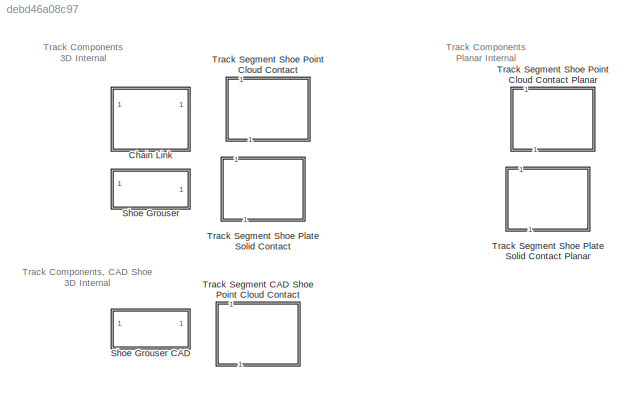
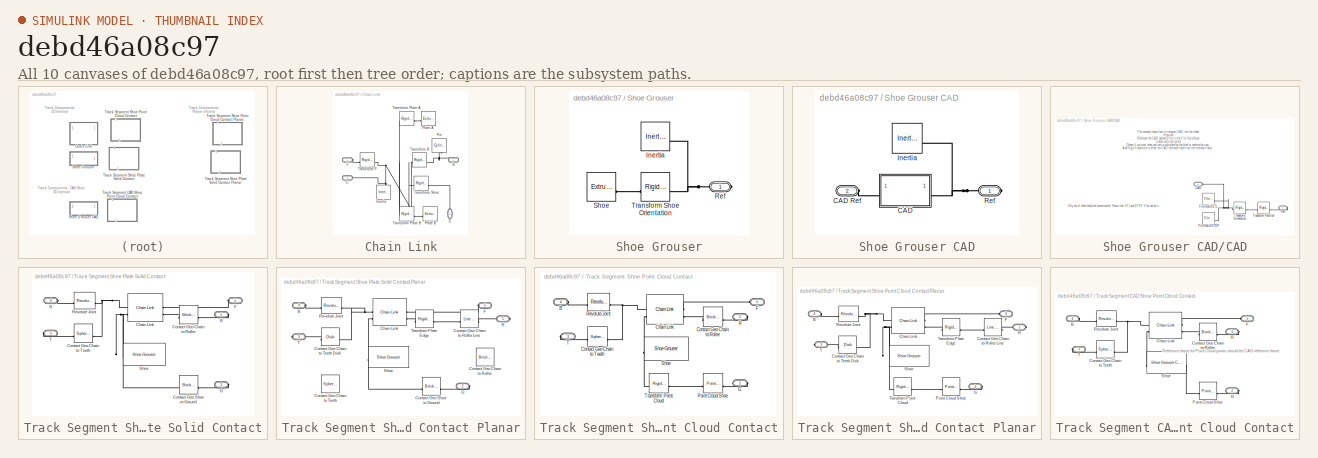
[diagram: thumbnail index - all 10 canvases of the model, root first then tree order]
MODEL slx_debd46a08c97
KIND library
CONFIG SolverName = VariableStepAuto
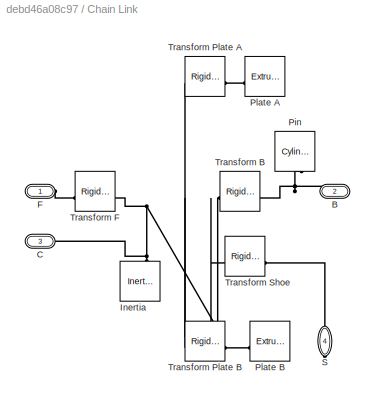
BLOCK [SubSystem] Chain Link
BLOCK [PMIOPort] Chain Link/B
  Port = 2
  Side = Right
BLOCK [PMIOPort] Chain Link/C
  Port = 3
  Side = Left
BLOCK [PMIOPort] Chain Link/F
  Side = Left
BLOCK [Reference] Chain Link/Inertia  REF=sm_lib/Body Elements/Inertia
  NameLocation = left
  SourceBlock = sm_lib/Body Elements/Inertia
  SourceType = Inertia
BLOCK [Reference] Chain Link/Pin  REF=sm_lib/Body Elements/Cylindrical Solid
  NameLocation = right
  SourceBlock = sm_lib/Body Elements/Cylindrical Solid
  SourceType = Cylindrical Solid
BLOCK [Reference] Chain Link/Plate A  REF=sm_lib/Body Elements/Extruded Solid
  SourceBlock = sm_lib/Body Elements/Extruded Solid
  SourceType = Extruded Solid
BLOCK [Reference] Chain Link/Plate B  REF=sm_lib/Body Elements/Extruded Solid
  SourceBlock = sm_lib/Body Elements/Extruded Solid
  SourceType = Extruded Solid
BLOCK [PMIOPort] Chain Link/S
  NameLocation = left
  Port = 4
  Side = Right
BLOCK [Reference] Chain Link/Transform B  REF=sm_lib/Frames and
Transforms/Rigid
Transform
  SourceBlock = sm_lib/Frames and\nTransforms/Rigid\nTransform
  SourceType = Rigid\nTransform
BLOCK [Reference] Chain Link/Transform F  REF=sm_lib/Frames and
Transforms/Rigid
Transform
  SourceBlock = sm_lib/Frames and\nTransforms/Rigid\nTransform
  SourceType = Rigid\nTransform
BLOCK [Reference] Chain Link/Transform Plate A  REF=sm_lib/Frames and
Transforms/Rigid
Transform
  SourceBlock = sm_lib/Frames and\nTransforms/Rigid\nTransform
  SourceType = Rigid\nTransform
BLOCK [Reference] Chain Link/Transform Plate B  REF=sm_lib/Frames and
Transforms/Rigid
Transform
  SourceBlock = sm_lib/Frames and\nTransforms/Rigid\nTransform
  SourceType = Rigid\nTransform
BLOCK [Reference] Chain Link/Transform Shoe  REF=sm_lib/Frames and
Transforms/Rigid
Transform
  SourceBlock = sm_lib/Frames and\nTransforms/Rigid\nTransform
  SourceType = Rigid\nTransform
BLOCK [SubSystem] Shoe Grouser
BLOCK [SubSystem] Shoe Grouser CAD
BLOCK [SubSystem] Shoe Grouser CAD/CAD
BLOCK [PMIOPort] Shoe Grouser CAD/CAD Ref
  Port = 2
  Side = Left
BLOCK [PMIOPort] Shoe Grouser CAD/CAD/CAD
  Port = 2
  Side = Left
BLOCK [Reference] Shoe Grouser CAD/CAD/File Solid STEP  REF=sm_lib/Body Elements/File Solid
  Commented = on
  SourceBlock = sm_lib/Body Elements/File Solid
  SourceType = File Solid
BLOCK [Reference] Shoe Grouser CAD/CAD/File Solid STL  REF=sm_lib/Body Elements/File Solid
  SourceBlock = sm_lib/Body Elements/File Solid
  SourceType = File Solid
BLOCK [PMIOPort] Shoe Grouser CAD/CAD/Ref
  Side = Right
BLOCK [Reference] Shoe Grouser CAD/CAD/Transform Orientation  REF=sm_lib/Frames and
Transforms/Rigid
Transform
  SourceBlock = sm_lib/Frames and\nTransforms/Rigid\nTransform
  SourceType = Rigid\nTransform
BLOCK [Reference] Shoe Grouser CAD/CAD/Transform Position  REF=sm_lib/Frames and
Transforms/Rigid
Transform
  SourceBlock = sm_lib/Frames and\nTransforms/Rigid\nTransform
  SourceType = Rigid\nTransform
BLOCK [Reference] Shoe Grouser CAD/Inertia  REF=sm_lib/Body Elements/Inertia
  SourceBlock = sm_lib/Body Elements/Inertia
  SourceType = Inertia
BLOCK [PMIOPort] Shoe Grouser CAD/Ref
  NameLocation = top
  Side = Right
BLOCK [Reference] Shoe Grouser/Inertia  REF=sm_lib/Body Elements/Inertia
  SourceBlock = sm_lib/Body Elements/Inertia
  SourceType = Inertia
BLOCK [PMIOPort] Shoe Grouser/Ref
  NameLocation = top
  Side = Right
BLOCK [Reference] Shoe Grouser/Shoe  REF=sm_lib/Body Elements/Extruded Solid
  SourceBlock = sm_lib/Body Elements/Extruded Solid
  SourceType = Extruded Solid
BLOCK [Reference] Shoe Grouser/Transform Shoe Orientation  REF=sm_lib/Frames and
Transforms/Rigid
Transform
  SourceBlock = sm_lib/Frames and\nTransforms/Rigid\nTransform
  SourceType = Rigid\nTransform
BLOCK [SubSystem] Track Segment CAD Shoe Point Cloud Contact
  NameLocation = right
BLOCK [PMIOPort] Track Segment CAD Shoe Point Cloud Contact/B
  Port = 4
  Side = Left
BLOCK [Reference] Track Segment CAD Shoe Point Cloud Contact/Chain Link  REF=$bdroot/Chain Link
  SourceBlock = $bdroot/Chain Link
  SourceType = Excavator Chain Link Segment
BLOCK [Reference] Track Segment CAD Shoe Point Cloud Contact/Contact Geo Chain to Roller  REF=sm_lib/Body Elements/Brick Solid
  SourceBlock = sm_lib/Body Elements/Brick Solid
  SourceType = Brick Solid
BLOCK [Reference] Track Segment CAD Shoe Point Cloud Contact/Contact Geo Chain to Teeth  REF=sm_lib/Body Elements/Spherical Solid
  SourceBlock = sm_lib/Body Elements/Spherical Solid
  SourceType = Spherical Solid
BLOCK [PMIOPort] Track Segment CAD Shoe Point Cloud Contact/F
  Port = 5
  Side = Left
BLOCK [PMIOPort] Track Segment CAD Shoe Point Cloud Contact/G
  Port = 2
  Side = Right
BLOCK [Reference] Track Segment CAD Shoe Point Cloud Contact/Point Cloud Shoe  REF=sm_lib/Curves and Surfaces/Point Cloud
  SourceBlock = sm_lib/Curves and Surfaces/Point Cloud
  SourceType = Point Cloud
BLOCK [PMIOPort] Track Segment CAD Shoe Point Cloud Contact/R
  Side = Right
BLOCK [Reference] Track Segment CAD Shoe Point Cloud Contact/Revolute Joint  REF=sm_lib/Joints/Revolute Joint
  SourceBlock = sm_lib/Joints/Revolute Joint
  SourceType = Revolute Joint
BLOCK [Reference] Track Segment CAD Shoe Point Cloud Contact/Shoe  REF=$bdroot/Shoe Grouser CAD
  SourceBlock = $bdroot/Shoe Grouser CAD
  SourceType = Shoe with Grouser
BLOCK [PMIOPort] Track Segment CAD Shoe Point Cloud Contact/T
  Port = 3
  Side = Right
BLOCK [SubSystem] Track Segment Shoe Plate Solid Contact
  NameLocation = right
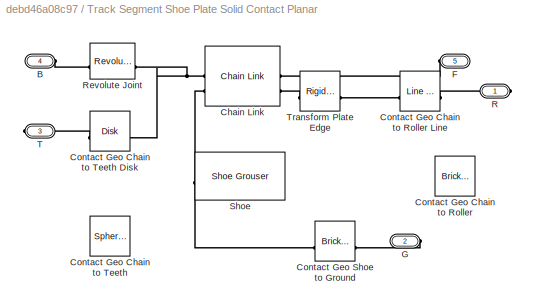
BLOCK [SubSystem] Track Segment Shoe Plate Solid Contact Planar
  NameLocation = right
BLOCK [PMIOPort] Track Segment Shoe Plate Solid Contact Planar/B
  Port = 4
  Side = Left
BLOCK [Reference] Track Segment Shoe Plate Solid Contact Planar/Chain Link  REF=$bdroot/Chain Link
  SourceBlock = $bdroot/Chain Link
  SourceType = Excavator Chain Link Segment
BLOCK [Reference] Track Segment Shoe Plate Solid Contact Planar/Contact Geo Chain to Roller  REF=sm_lib/Body Elements/Brick Solid
  SourceBlock = sm_lib/Body Elements/Brick Solid
  SourceType = Brick Solid
BLOCK [Reference] Track Segment Shoe Plate Solid Contact Planar/Contact Geo Chain to Roller Line  REF=sm_lib/Curves and Surfaces/Line Segment
  SourceBlock = sm_lib/Curves and Surfaces/Line Segment
  SourceType = Line Segment
BLOCK [Reference] Track Segment Shoe Plate Solid Contact Planar/Contact Geo Chain to Teeth  REF=sm_lib/Body Elements/Spherical Solid
  SourceBlock = sm_lib/Body Elements/Spherical Solid
  SourceType = Spherical Solid
BLOCK [Reference] Track Segment Shoe Plate Solid Contact Planar/Contact Geo Chain to Teeth Disk  REF=sm_lib/Curves and Surfaces/Disk
  SourceBlock = sm_lib/Curves and Surfaces/Disk
  SourceType = Disk
BLOCK [Reference] Track Segment Shoe Plate Solid Contact Planar/Contact Geo Shoe to Ground  REF=sm_lib/Body Elements/Brick Solid
  NameLocation = top
  SourceBlock = sm_lib/Body Elements/Brick Solid
  SourceType = Brick Solid
BLOCK [PMIOPort] Track Segment Shoe Plate Solid Contact Planar/F
  Port = 5
  Side = Left
BLOCK [PMIOPort] Track Segment Shoe Plate Solid Contact Planar/G
  Port = 2
  Side = Right
BLOCK [PMIOPort] Track Segment Shoe Plate Solid Contact Planar/R
  Side = Right
BLOCK [Reference] Track Segment Shoe Plate Solid Contact Planar/Revolute Joint  REF=sm_lib/Joints/Revolute Joint
  SourceBlock = sm_lib/Joints/Revolute Joint
  SourceType = Revolute Joint
BLOCK [Reference] Track Segment Shoe Plate Solid Contact Planar/Shoe  REF=$bdroot/Shoe Grouser
  LibrarySourceBlock = sm_chain_drive_lib/Shoe
  SourceBlock = $bdroot/Shoe Grouser
  SourceType = Shoe with Grouser
BLOCK [PMIOPort] Track Segment Shoe Plate Solid Contact Planar/T
  Port = 3
  Side = Right
BLOCK [Reference] Track Segment Shoe Plate Solid Contact Planar/Transform Plate Edge  REF=sm_lib/Frames and
Transforms/Rigid
Transform
  SourceBlock = sm_lib/Frames and\nTransforms/Rigid\nTransform
  SourceType = Rigid\nTransform
BLOCK [PMIOPort] Track Segment Shoe Plate Solid Contact/B
  Port = 4
  Side = Left
BLOCK [Reference] Track Segment Shoe Plate Solid Contact/Chain Link  REF=$bdroot/Chain Link
  SourceBlock = $bdroot/Chain Link
  SourceType = Excavator Chain Link Segment
BLOCK [Reference] Track Segment Shoe Plate Solid Contact/Contact Geo Chain to Roller  REF=sm_lib/Body Elements/Brick Solid
  SourceBlock = sm_lib/Body Elements/Brick Solid
  SourceType = Brick Solid
BLOCK [Reference] Track Segment Shoe Plate Solid Contact/Contact Geo Chain to Teeth  REF=sm_lib/Body Elements/Spherical Solid
  SourceBlock = sm_lib/Body Elements/Spherical Solid
  SourceType = Spherical Solid
BLOCK [Reference] Track Segment Shoe Plate Solid Contact/Contact Geo Shoe to Ground  REF=sm_lib/Body Elements/Brick Solid
  NameLocation = top
  SourceBlock = sm_lib/Body Elements/Brick Solid
  SourceType = Brick Solid
BLOCK [PMIOPort] Track Segment Shoe Plate Solid Contact/F
  Port = 5
  Side = Left
BLOCK [PMIOPort] Track Segment Shoe Plate Solid Contact/G
  Port = 2
  Side = Right
BLOCK [PMIOPort] Track Segment Shoe Plate Solid Contact/R
  Side = Right
BLOCK [Reference] Track Segment Shoe Plate Solid Contact/Revolute Joint  REF=sm_lib/Joints/Revolute Joint
  SourceBlock = sm_lib/Joints/Revolute Joint
  SourceType = Revolute Joint
BLOCK [Reference] Track Segment Shoe Plate Solid Contact/Shoe  REF=$bdroot/Shoe Grouser
  LibrarySourceBlock = sm_chain_drive_lib/Shoe
  SourceBlock = $bdroot/Shoe Grouser
  SourceType = Shoe with Grouser
BLOCK [PMIOPort] Track Segment Shoe Plate Solid Contact/T
  Port = 3
  Side = Right
BLOCK [SubSystem] Track Segment Shoe Point Cloud Contact
  NameLocation = right
BLOCK [SubSystem] Track Segment Shoe Point Cloud Contact Planar
  NameLocation = right
BLOCK [PMIOPort] Track Segment Shoe Point Cloud Contact Planar/B
  Port = 4
  Side = Left
BLOCK [Reference] Track Segment Shoe Point Cloud Contact Planar/Chain Link  REF=$bdroot/Chain Link
  SourceBlock = $bdroot/Chain Link
  SourceType = Excavator Chain Link Segment
BLOCK [Reference] Track Segment Shoe Point Cloud Contact Planar/Contact Geo Chain to Roller Line  REF=sm_lib/Curves and Surfaces/Line Segment
  SourceBlock = sm_lib/Curves and Surfaces/Line Segment
  SourceType = Line Segment
BLOCK [Reference] Track Segment Shoe Point Cloud Contact Planar/Contact Geo Chain to Teeth Disk  REF=sm_lib/Curves and Surfaces/Disk
  SourceBlock = sm_lib/Curves and Surfaces/Disk
  SourceType = Disk
BLOCK [PMIOPort] Track Segment Shoe Point Cloud Contact Planar/F
  Port = 5
  Side = Left
BLOCK [PMIOPort] Track Segment Shoe Point Cloud Contact Planar/G
  Port = 2
  Side = Right
BLOCK [Reference] Track Segment Shoe Point Cloud Contact Planar/Point Cloud Shoe  REF=sm_lib/Curves and Surfaces/Point Cloud
  SourceBlock = sm_lib/Curves and Surfaces/Point Cloud
  SourceType = Point Cloud
BLOCK [PMIOPort] Track Segment Shoe Point Cloud Contact Planar/R
  Side = Right
BLOCK [Reference] Track Segment Shoe Point Cloud Contact Planar/Revolute Joint  REF=sm_lib/Joints/Revolute Joint
  SourceBlock = sm_lib/Joints/Revolute Joint
  SourceType = Revolute Joint
BLOCK [Reference] Track Segment Shoe Point Cloud Contact Planar/Shoe  REF=$bdroot/Shoe Grouser
  LibrarySourceBlock = sm_chain_drive_lib/Shoe
  SourceBlock = $bdroot/Shoe Grouser
  SourceType = Shoe with Grouser
BLOCK [PMIOPort] Track Segment Shoe Point Cloud Contact Planar/T
  Port = 3
  Side = Right
BLOCK [Reference] Track Segment Shoe Point Cloud Contact Planar/Transform Plate Edge  REF=sm_lib/Frames and
Transforms/Rigid
Transform
  SourceBlock = sm_lib/Frames and\nTransforms/Rigid\nTransform
  SourceType = Rigid\nTransform
BLOCK [Reference] Track Segment Shoe Point Cloud Contact Planar/Transform Point Cloud  REF=sm_lib/Frames and
Transforms/Rigid
Transform
  SourceBlock = sm_lib/Frames and\nTransforms/Rigid\nTransform
  SourceType = Rigid\nTransform
BLOCK [PMIOPort] Track Segment Shoe Point Cloud Contact/B
  Port = 4
  Side = Left
BLOCK [Reference] Track Segment Shoe Point Cloud Contact/Chain Link  REF=$bdroot/Chain Link
  SourceBlock = $bdroot/Chain Link
  SourceType = Excavator Chain Link Segment
BLOCK [Reference] Track Segment Shoe Point Cloud Contact/Contact Geo Chain to Roller  REF=sm_lib/Body Elements/Brick Solid
  SourceBlock = sm_lib/Body Elements/Brick Solid
  SourceType = Brick Solid
BLOCK [Reference] Track Segment Shoe Point Cloud Contact/Contact Geo Chain to Teeth  REF=sm_lib/Body Elements/Spherical Solid
  SourceBlock = sm_lib/Body Elements/Spherical Solid
  SourceType = Spherical Solid
BLOCK [PMIOPort] Track Segment Shoe Point Cloud Contact/F
  Port = 5
  Side = Left
BLOCK [PMIOPort] Track Segment Shoe Point Cloud Contact/G
  Port = 2
  Side = Right
BLOCK [Reference] Track Segment Shoe Point Cloud Contact/Point Cloud Shoe  REF=sm_lib/Curves and Surfaces/Point Cloud
  SourceBlock = sm_lib/Curves and Surfaces/Point Cloud
  SourceType = Point Cloud
BLOCK [PMIOPort] Track Segment Shoe Point Cloud Contact/R
  Side = Right
BLOCK [Reference] Track Segment Shoe Point Cloud Contact/Revolute Joint  REF=sm_lib/Joints/Revolute Joint
  SourceBlock = sm_lib/Joints/Revolute Joint
  SourceType = Revolute Joint
BLOCK [Reference] Track Segment Shoe Point Cloud Contact/Shoe  REF=$bdroot/Shoe Grouser
  LibrarySourceBlock = sm_chain_drive_lib/Shoe
  SourceBlock = $bdroot/Shoe Grouser
  SourceType = Shoe with Grouser
BLOCK [PMIOPort] Track Segment Shoe Point Cloud Contact/T
  Port = 3
  Side = Right
BLOCK [Reference] Track Segment Shoe Point Cloud Contact/Transform Point Cloud  REF=sm_lib/Frames and
Transforms/Rigid
Transform
  SourceBlock = sm_lib/Frames and\nTransforms/Rigid\nTransform
  SourceType = Rigid\nTransform
ANNOTATION (root): Track Components 3D Internal
ANNOTATION (root): Track Components Planar Internal
ANNOTATION (root): Track Components, CAD Shoe 3D Internal
ANNOTATION Shoe Grouser CAD/CAD: This example shows how to integrate CAD into the model. Steps are: Reference the CAD geometry file in the File Solid block. Ensure units are correct Choose if you want mass and inertia calculated by the block or enetered as a parameter Add Rigid Transforms to offset the CAD reference frame from the reference frame for the track shoe. Port "Ref" is a the reference frame for the track shoe, which is...<+64ch>
ANNOTATION Shoe Grouser CAD/CAD: Only one of these should be uncommented. Shows that STL and STEP files can be used.
ANNOTATION Track Segment CAD Shoe Point Cloud Contact: Reference frame for Point Cloud points should be CAD reference frame.
PNET net1: Chain Link/B:RConn1 -- Chain Link/Pin:RConn1 -- Chain Link/Transform B:RConn1
PNET net2: Chain Link/C:RConn1 -- Chain Link/Inertia:RConn1 -- Chain Link/Transform B:LConn1 -- Chain Link/Transform F:RConn1 -- Chain Link/Transform Plate A:LConn1 -- Chain Link/Transform Plate B:LConn1 -- Chain Link/Transform Shoe:LConn1
PLINE Chain Link/F:RConn1 -- Chain Link/Transform F:LConn1
PLINE Chain Link/Plate A:RConn1 -- Chain Link/Transform Plate A:RConn1
PLINE Chain Link/Plate B:RConn1 -- Chain Link/Transform Plate B:RConn1
PLINE Chain Link/S:RConn1 -- Chain Link/Transform Shoe:RConn1
PLINE Shoe Grouser CAD/CAD Ref:RConn1 -- Shoe Grouser CAD/CAD:LConn1
PNET net3: Shoe Grouser CAD/CAD/CAD:RConn1 -- Shoe Grouser CAD/CAD/File Solid STEP:RConn1 -- Shoe Grouser CAD/CAD/File Solid STL:RConn1 -- Shoe Grouser CAD/CAD/Transform Orientation:LConn1
PLINE Shoe Grouser CAD/CAD/Ref:RConn1 -- Shoe Grouser CAD/CAD/Transform Position:RConn1
PLINE Shoe Grouser CAD/CAD/Transform Orientation:RConn1 -- Shoe Grouser CAD/CAD/Transform Position:LConn1
PNET net4: Shoe Grouser CAD/CAD:RConn1 -- Shoe Grouser CAD/Inertia:RConn1 -- Shoe Grouser CAD/Ref:RConn1
PNET net5: Shoe Grouser/Inertia:RConn1 -- Shoe Grouser/Ref:RConn1 -- Shoe Grouser/Transform Shoe Orientation:LConn1
PLINE Shoe Grouser/Shoe:RConn1 -- Shoe Grouser/Transform Shoe Orientation:RConn1
note: PNET lines group multi-terminal physical nets as a canonical sorted terminal list (undirected conserving connections); 2-terminal nets keep the pairwise PLINE form
